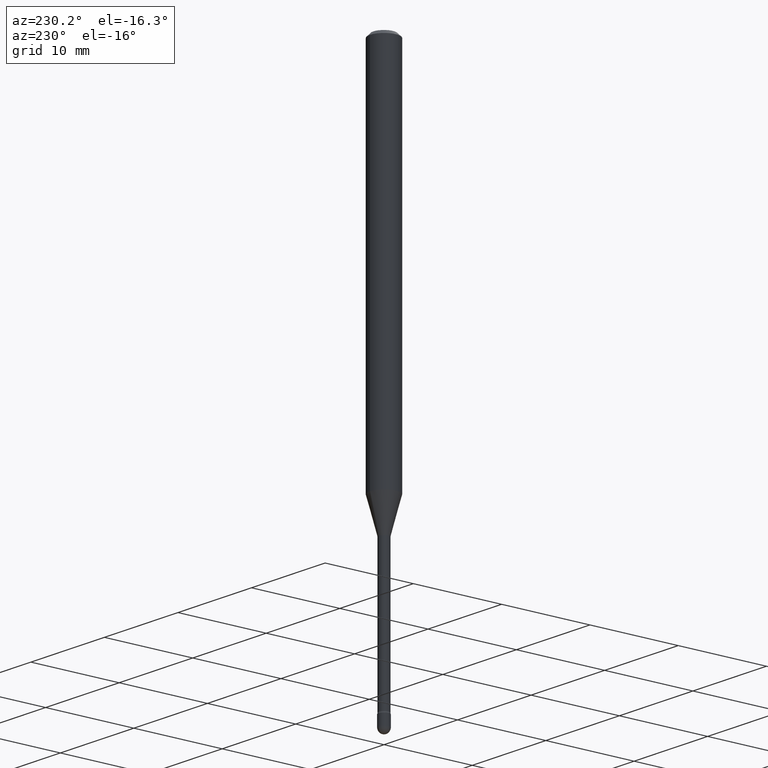
[diagram: clean part render]
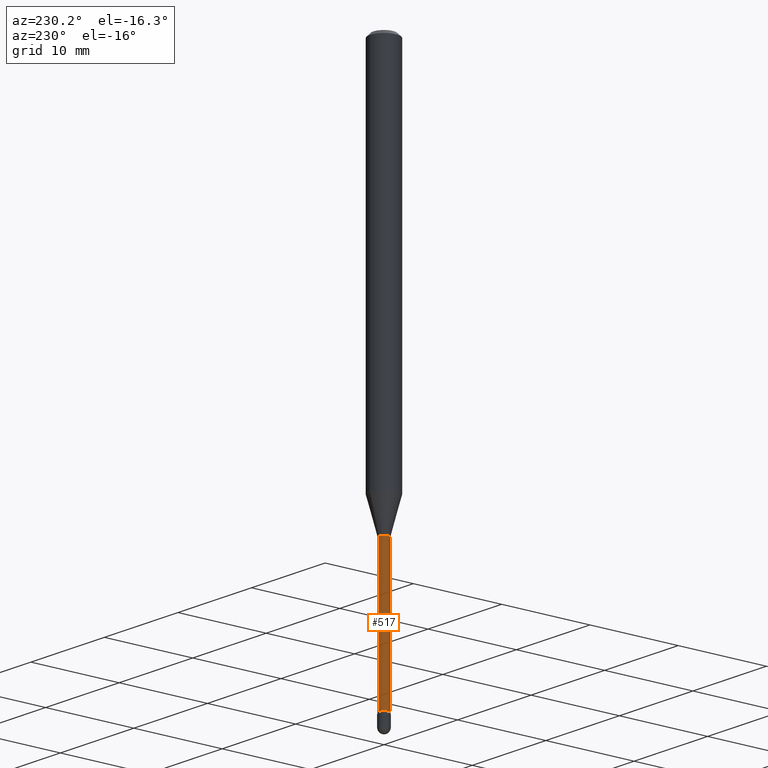
[diagram: same view with one face highlighted and labeled with its STEP entity id]
A machine part, auxiliary view. The second image highlights one B-rep face of the part: STEP entity #517.
In plain terms, the highlighted cylindrical surface (edge-blend (fillet) strip) has radius 0.5613 mm, axis along (-0, 0, 1).
Its self-contained STEP definition (entity closure, byte-faithful):
#35 = AXIS2_PLACEMENT_3D ( 'NONE', #40, #381, #469 ) ;
#36 = CARTESIAN_POINT ( 'NONE',  ( 1.570299446029823742E-16, 0.02210000000000003628, 4.009112815389543820E-16 ) ) ;
#40 = CARTESIAN_POINT ( 'NONE',  ( 4.394424225547836862E-29, -6.274134815809582677E-15, -1.796974787463811118 ) ) ;
#41 = DIRECTION ( 'NONE',  ( -2.445456806742389886E-29, 3.491498522728124281E-15, 1.000000000000000000 ) ) ;
#58 = EDGE_CURVE ( 'NONE', #561, #365, #360, .T. ) ;
#72 = DIRECTION ( 'NONE',  ( -6.982962677686265922E-15, -1.000000000000000000, 3.491498522728123492E-15 ) ) ;
#77 = CARTESIAN_POINT ( 'NONE',  ( 1.620037437533623579E-16, 0.02209999999999160900, -2.422672283192177645 ) ) ;
#81 = CARTESIAN_POINT ( 'NONE',  ( 1.570299446030415881E-16, 0.02209999999999372536, -1.796974787463811118 ) ) ;
#97 = CIRCLE ( 'NONE', #333, 0.02210000000000007098 ) ;
#120 = EDGE_CURVE ( 'NONE', #525, #265, #97, .T. ) ;
#127 = ORIENTED_EDGE ( 'NONE', *, *, #120, .T. ) ;
#158 = EDGE_CURVE ( 'NONE', #265, #365, #271, .T. ) ;
#160 = FACE_OUTER_BOUND ( 'NONE', #304, .T. ) ;
#177 = DIRECTION ( 'NONE',  ( -2.445456806742389886E-29, 3.491498522728124281E-15, 1.000000000000000000 ) ) ;
#206 = CARTESIAN_POINT ( 'NONE',  ( -1.169113584055446105E-44, 1.669184350826100908E-30, 4.780733988912460139E-16 ) ) ;
#245 = CYLINDRICAL_SURFACE ( 'NONE', #436, 0.02210000000000003628 ) ;
#265 = VERTEX_POINT ( 'NONE', #322 ) ;
#271 = LINE ( 'NONE', #492, #393 ) ;
#304 = EDGE_LOOP ( 'NONE', ( #425, #127, #330, #428 ) ) ;
#322 = CARTESIAN_POINT ( 'NONE',  ( -1.543234751768077413E-16, -0.02210000000000852949, -2.422672283192177645 ) ) ;
#330 = ORIENTED_EDGE ( 'NONE', *, *, #158, .T. ) ;
#333 = AXIS2_PLACEMENT_3D ( 'NONE', #566, #349, #520 ) ;
#349 = DIRECTION ( 'NONE',  ( -2.445456806742390166E-29, 3.491498522728124281E-15, 1.000000000000000000 ) ) ;
#360 = CIRCLE ( 'NONE', #35, 0.02210000000000000159 ) ;
#365 = VERTEX_POINT ( 'NONE', #501 ) ;
#381 = DIRECTION ( 'NONE',  ( -2.445456806742390166E-29, 3.491498522728124281E-15, 1.000000000000000000 ) ) ;
#393 = VECTOR ( 'NONE', #41, 39.37007874015748143 ) ;
#425 = ORIENTED_EDGE ( 'NONE', *, *, #562, .F. ) ;
#428 = ORIENTED_EDGE ( 'NONE', *, *, #58, .F. ) ;
#432 = LINE ( 'NONE', #36, #497 ) ;
#436 = AXIS2_PLACEMENT_3D ( 'NONE', #206, #540, #72 ) ;
#469 = DIRECTION ( 'NONE',  ( -6.982962677686265922E-15, -1.000000000000000000, 0.000000000000000000 ) ) ;
#492 = CARTESIAN_POINT ( 'NONE',  ( -1.543234751768667333E-16, -0.02210000000000003628, 5.552355162435376952E-16 ) ) ;
#497 = VECTOR ( 'NONE', #177, 39.37007874015748143 ) ;
#501 = CARTESIAN_POINT ( 'NONE',  ( -1.543234751768225325E-16, -0.02210000000000627435, -1.796974787463811118 ) ) ;
#517 = ADVANCED_FACE ( 'NONE', ( #160 ), #245, .T. ) ;
#520 = DIRECTION ( 'NONE',  ( -6.982962677686265133E-15, -1.000000000000000000, 0.000000000000000000 ) ) ;
#525 = VERTEX_POINT ( 'NONE', #77 ) ;
#540 = DIRECTION ( 'NONE',  ( -2.445456806742390166E-29, 3.491498522728124281E-15, 1.000000000000000000 ) ) ;
#561 = VERTEX_POINT ( 'NONE', #81 ) ;
#562 = EDGE_CURVE ( 'NONE', #525, #561, #432, .T. ) ;
#566 = CARTESIAN_POINT ( 'NONE',  ( 5.924540425438438156E-29, -8.458756697819860632E-15, -2.422672283192177645 ) ) ;